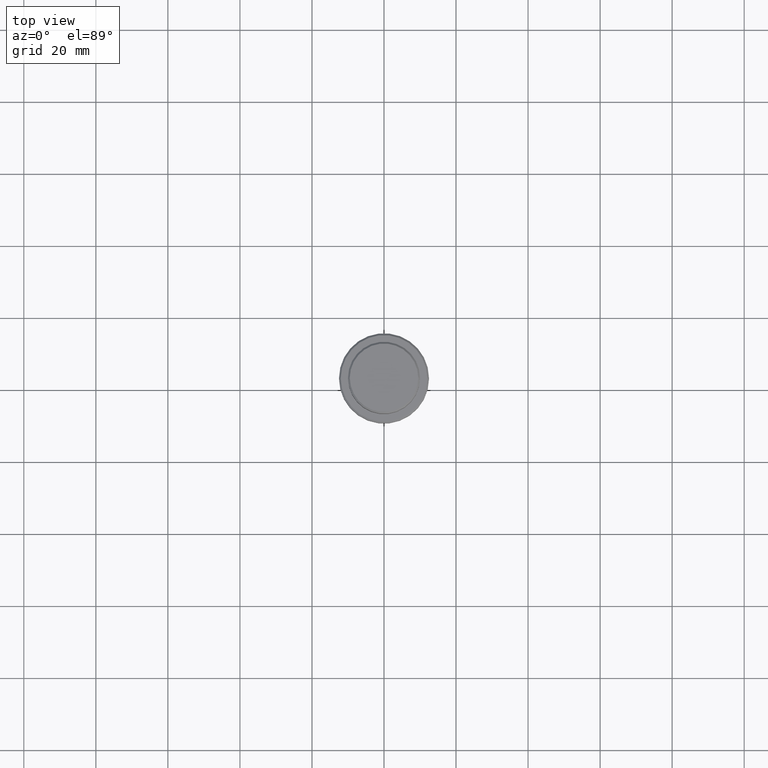
[diagram: clean part render]
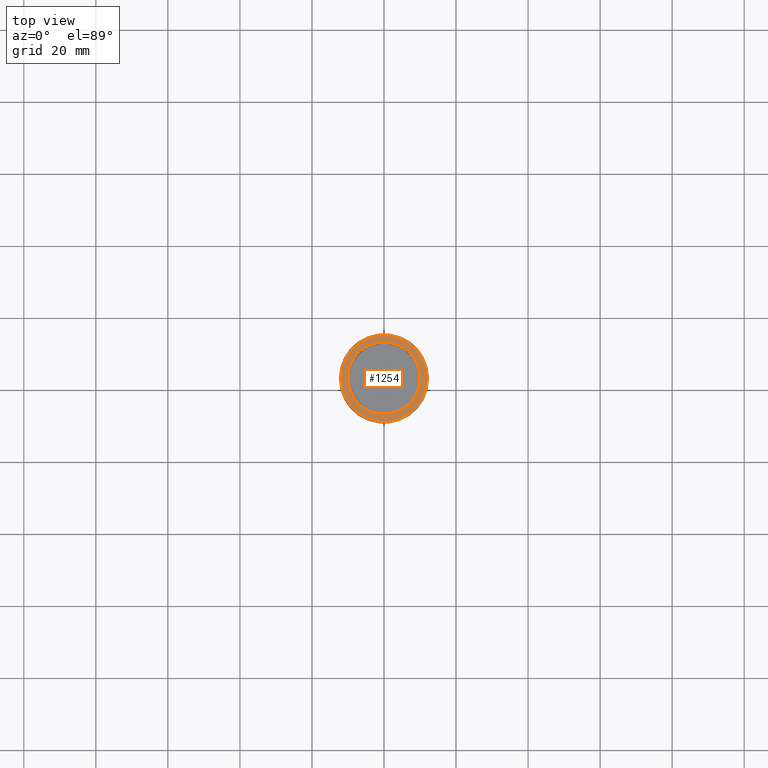
[diagram: same view with one face highlighted and labeled with its STEP entity id]
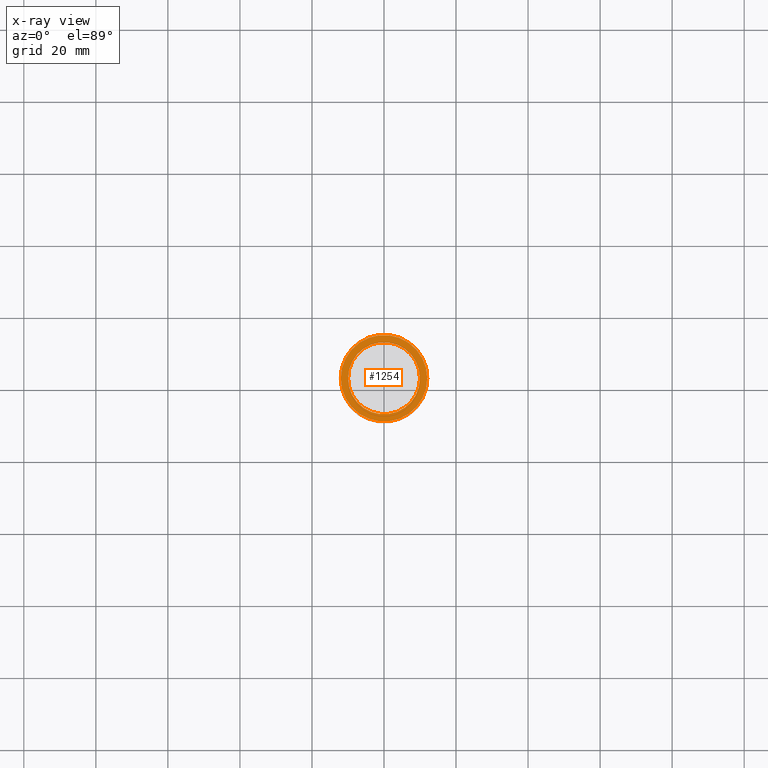
[diagram: x-ray of the same camera — body ghosted, the highlighted face saturated]
A machine part, top view. The second image highlights one B-rep face of the part: STEP entity #1254.
The next image is the same camera in x-ray: the body ghosted, the highlighted face saturated — about 0% of this face is hidden behind the body in this view.
In plain terms, the highlighted planar face has unit normal (0, -0, 1).
Its self-contained STEP definition (entity closure, byte-faithful):
#22 = EDGE_CURVE ( 'NONE', #683, #855, #685, .T. ) ;
#67 = DIRECTION ( 'NONE',  ( 0.000000000000000000, -0.000000000000000000, 1.000000000000000000 ) ) ;
#83 = CIRCLE ( 'NONE', #915, 9.999999999999992895 ) ;
#96 = DIRECTION ( 'NONE',  ( 1.000000000000000000, 0.000000000000000000, 0.000000000000000000 ) ) ;
#185 = DIRECTION ( 'NONE',  ( 1.000000000000000000, 0.000000000000000000, 0.000000000000000000 ) ) ;
#216 = CARTESIAN_POINT ( 'NONE',  ( 9.999999999999992895, 0.000000000000000000, -9.000000000000000000 ) ) ;
#238 = CARTESIAN_POINT ( 'NONE',  ( 0.000000000000000000, 0.000000000000000000, -9.000000000000000000 ) ) ;
#250 = CARTESIAN_POINT ( 'NONE',  ( -12.00000000000001066, 0.000000000000000000, -9.000000000000000000 ) ) ;
#256 = AXIS2_PLACEMENT_3D ( 'NONE', #584, #263, #1018 ) ;
#263 = DIRECTION ( 'NONE',  ( 0.000000000000000000, 0.000000000000000000, -1.000000000000000000 ) ) ;
#273 = CIRCLE ( 'NONE', #894, 12.00000000000001066 ) ;
#289 = PLANE ( 'NONE',  #366 ) ;
#296 = CARTESIAN_POINT ( 'NONE',  ( 0.000000000000000000, 0.000000000000000000, -9.000000000000000000 ) ) ;
#322 = DIRECTION ( 'NONE',  ( 1.000000000000000000, 0.000000000000000000, 0.000000000000000000 ) ) ;
#341 = AXIS2_PLACEMENT_3D ( 'NONE', #238, #1073, #96 ) ;
#359 = ORIENTED_EDGE ( 'NONE', *, *, #621, .T. ) ;
#366 = AXIS2_PLACEMENT_3D ( 'NONE', #744, #67, #322 ) ;
#481 = EDGE_LOOP ( 'NONE', ( #359, #1007 ) ) ;
#584 = CARTESIAN_POINT ( 'NONE',  ( 0.000000000000000000, 0.000000000000000000, -9.000000000000000000 ) ) ;
#612 = EDGE_LOOP ( 'NONE', ( #658, #1305 ) ) ;
#621 = EDGE_CURVE ( 'NONE', #769, #833, #889, .T. ) ;
#658 = ORIENTED_EDGE ( 'NONE', *, *, #22, .T. ) ;
#683 = VERTEX_POINT ( 'NONE', #250 ) ;
#685 = CIRCLE ( 'NONE', #341, 12.00000000000001066 ) ;
#731 = DIRECTION ( 'NONE',  ( 0.000000000000000000, 0.000000000000000000, -1.000000000000000000 ) ) ;
#744 = CARTESIAN_POINT ( 'NONE',  ( 0.000000000000000000, 9.499999999999992895, -9.000000000000000000 ) ) ;
#769 = VERTEX_POINT ( 'NONE', #216 ) ;
#833 = VERTEX_POINT ( 'NONE', #975 ) ;
#855 = VERTEX_POINT ( 'NONE', #1214 ) ;
#860 = DIRECTION ( 'NONE',  ( -0.000000000000000000, -0.000000000000000000, 1.000000000000000000 ) ) ;
#889 = CIRCLE ( 'NONE', #256, 9.999999999999992895 ) ;
#894 = AXIS2_PLACEMENT_3D ( 'NONE', #1370, #860, #972 ) ;
#915 = AXIS2_PLACEMENT_3D ( 'NONE', #296, #731, #185 ) ;
#941 = FACE_OUTER_BOUND ( 'NONE', #612, .T. ) ;
#972 = DIRECTION ( 'NONE',  ( 1.000000000000000000, 0.000000000000000000, 0.000000000000000000 ) ) ;
#975 = CARTESIAN_POINT ( 'NONE',  ( -9.999999999999992895, 1.224646799147352468E-15, -9.000000000000000000 ) ) ;
#1007 = ORIENTED_EDGE ( 'NONE', *, *, #1125, .T. ) ;
#1018 = DIRECTION ( 'NONE',  ( 1.000000000000000000, 0.000000000000000000, 0.000000000000000000 ) ) ;
#1044 = FACE_BOUND ( 'NONE', #481, .T. ) ;
#1073 = DIRECTION ( 'NONE',  ( -0.000000000000000000, -0.000000000000000000, 1.000000000000000000 ) ) ;
#1125 = EDGE_CURVE ( 'NONE', #833, #769, #83, .T. ) ;
#1214 = CARTESIAN_POINT ( 'NONE',  ( 12.00000000000001066, 1.500192328955508326E-15, -9.000000000000000000 ) ) ;
#1254 = ADVANCED_FACE ( 'NONE', ( #941, #1044 ), #289, .T. ) ;
#1305 = ORIENTED_EDGE ( 'NONE', *, *, #1309, .T. ) ;
#1309 = EDGE_CURVE ( 'NONE', #855, #683, #273, .T. ) ;
#1370 = CARTESIAN_POINT ( 'NONE',  ( 0.000000000000000000, 0.000000000000000000, -9.000000000000000000 ) ) ;